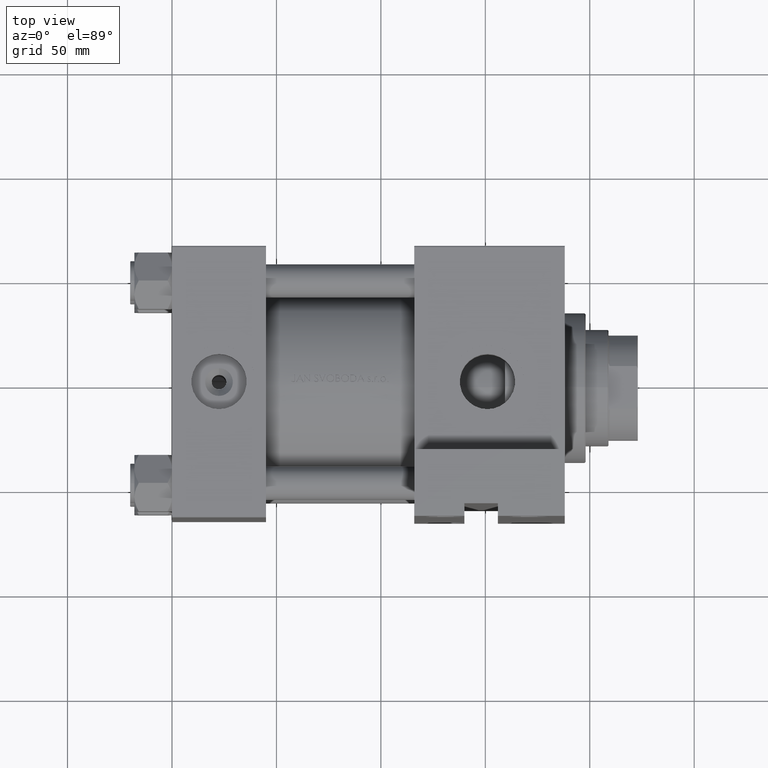
[diagram: clean part render]
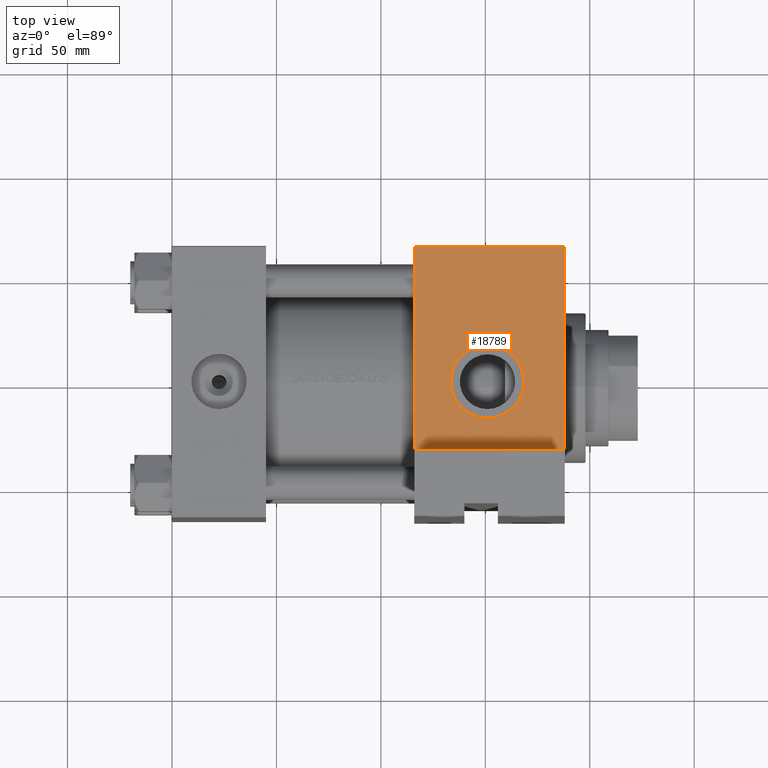
[diagram: same view with one face highlighted and labeled with its STEP entity id]
A machine part, top view. The second image highlights one B-rep face of the part: STEP entity #18789.
In plain terms, the highlighted planar face has unit normal (0, 0, -1).
Its self-contained STEP definition (entity closure, byte-faithful):
#262 = CARTESIAN_POINT ( 'NONE',  ( 151.0000000000000000, -64.99999999999998579, -17.49999999999999289 ) ) ;
#1447 = FACE_OUTER_BOUND ( 'NONE', #30011, .T. ) ;
#2943 = DIRECTION ( 'NONE',  ( 0.000000000000000000, 0.000000000000000000, -1.000000000000000000 ) ) ;
#5067 = ORIENTED_EDGE ( 'NONE', *, *, #27777, .T. ) ;
#5110 = VERTEX_POINT ( 'NONE', #7631 ) ;
#5581 = EDGE_CURVE ( 'NONE', #33712, #11941, #27488, .T. ) ;
#5741 = LINE ( 'NONE', #44387, #25142 ) ;
#5759 = AXIS2_PLACEMENT_3D ( 'NONE', #15567, #7999, #23386 ) ;
#6891 = CARTESIAN_POINT ( 'NONE',  ( 115.9999999999999858, -64.99999999999998579, -33.00000000000000000 ) ) ;
#7606 = LINE ( 'NONE', #11648, #42882 ) ;
#7631 = CARTESIAN_POINT ( 'NONE',  ( 151.0000000000000000, -64.99999999999998579, 17.49999999999999289 ) ) ;
#7999 = DIRECTION ( 'NONE',  ( 0.000000000000000000, -1.000000000000000000, -8.673617379884036705E-17 ) ) ;
#8324 = CARTESIAN_POINT ( 'NONE',  ( 188.0000000000000000, -64.99999999999998579, 65.00000000000000000 ) ) ;
#8548 = DIRECTION ( 'NONE',  ( -0.000000000000000000, 1.000000000000000000, 0.000000000000000000 ) ) ;
#10189 = ORIENTED_EDGE ( 'NONE', *, *, #23233, .F. ) ;
#10213 = CARTESIAN_POINT ( 'NONE',  ( 188.0000000000000000, -64.99999999999998579, 64.50000000000002842 ) ) ;
#11648 = CARTESIAN_POINT ( 'NONE',  ( 188.0000000000000000, -64.99999999999998579, 64.50000000000002842 ) ) ;
#11941 = VERTEX_POINT ( 'NONE', #15679 ) ;
#12740 = VECTOR ( 'NONE', #18605, 1000.000000000000000 ) ;
#13014 = AXIS2_PLACEMENT_3D ( 'NONE', #41950, #27023, #26781 ) ;
#15567 = CARTESIAN_POINT ( 'NONE',  ( 151.0000000000000000, -64.99999999999998579, 0.000000000000000000 ) ) ;
#15679 = CARTESIAN_POINT ( 'NONE',  ( 188.0000000000000000, -64.99999999999998579, -33.00000000000000000 ) ) ;
#16849 = PLANE ( 'NONE',  #34236 ) ;
#18605 = DIRECTION ( 'NONE',  ( 1.000000000000000000, 0.000000000000000000, 0.000000000000000000 ) ) ;
#18789 = ADVANCED_FACE ( 'NONE', ( #36044, #1447 ), #16849, .F. ) ;
#19462 = DIRECTION ( 'NONE',  ( -1.000000000000000000, 0.000000000000000000, 0.000000000000000000 ) ) ;
#19966 = VECTOR ( 'NONE', #47692, 1000.000000000000000 ) ;
#20897 = VERTEX_POINT ( 'NONE', #262 ) ;
#23233 = EDGE_CURVE ( 'NONE', #20897, #5110, #49347, .T. ) ;
#23386 = DIRECTION ( 'NONE',  ( 0.000000000000000000, 0.000000000000000000, -1.000000000000000000 ) ) ;
#24672 = CARTESIAN_POINT ( 'NONE',  ( 188.0000000000000000, -64.99999999999998579, 65.00000000000000000 ) ) ;
#25142 = VECTOR ( 'NONE', #2943, 1000.000000000000000 ) ;
#26781 = DIRECTION ( 'NONE',  ( 0.000000000000000000, 0.000000000000000000, -1.000000000000000000 ) ) ;
#27023 = DIRECTION ( 'NONE',  ( 0.000000000000000000, -1.000000000000000000, -8.673617379884036705E-17 ) ) ;
#27488 = LINE ( 'NONE', #8324, #19966 ) ;
#27777 = EDGE_CURVE ( 'NONE', #29111, #30564, #5741, .T. ) ;
#29111 = VERTEX_POINT ( 'NONE', #43361 ) ;
#29192 = ORIENTED_EDGE ( 'NONE', *, *, #32940, .T. ) ;
#30011 = EDGE_LOOP ( 'NONE', ( #46872, #48145, #5067, #29192 ) ) ;
#30564 = VERTEX_POINT ( 'NONE', #6891 ) ;
#32373 = CIRCLE ( 'NONE', #13014, 17.49999999999999289 ) ;
#32940 = EDGE_CURVE ( 'NONE', #30564, #11941, #38808, .T. ) ;
#33712 = VERTEX_POINT ( 'NONE', #10213 ) ;
#34236 = AXIS2_PLACEMENT_3D ( 'NONE', #24672, #8548, #47928 ) ;
#36044 = FACE_BOUND ( 'NONE', #40646, .T. ) ;
#38056 = CARTESIAN_POINT ( 'NONE',  ( 115.9999999999999858, -64.99999999999998579, -33.00000000000000000 ) ) ;
#38808 = LINE ( 'NONE', #38056, #12740 ) ;
#40646 = EDGE_LOOP ( 'NONE', ( #10189, #49409 ) ) ;
#41950 = CARTESIAN_POINT ( 'NONE',  ( 151.0000000000000000, -64.99999999999998579, 0.000000000000000000 ) ) ;
#42882 = VECTOR ( 'NONE', #19462, 1000.000000000000000 ) ;
#43361 = CARTESIAN_POINT ( 'NONE',  ( 115.9999999999999858, -64.99999999999998579, 64.50000000000002842 ) ) ;
#44387 = CARTESIAN_POINT ( 'NONE',  ( 115.9999999999999858, -64.99999999999998579, 65.00000000000000000 ) ) ;
#44876 = EDGE_CURVE ( 'NONE', #5110, #20897, #32373, .T. ) ;
#44896 = EDGE_CURVE ( 'NONE', #33712, #29111, #7606, .T. ) ;
#46872 = ORIENTED_EDGE ( 'NONE', *, *, #5581, .F. ) ;
#47692 = DIRECTION ( 'NONE',  ( 0.000000000000000000, 0.000000000000000000, -1.000000000000000000 ) ) ;
#47928 = DIRECTION ( 'NONE',  ( 0.000000000000000000, -0.000000000000000000, 1.000000000000000000 ) ) ;
#48145 = ORIENTED_EDGE ( 'NONE', *, *, #44896, .T. ) ;
#49347 = CIRCLE ( 'NONE', #5759, 17.49999999999999289 ) ;
#49409 = ORIENTED_EDGE ( 'NONE', *, *, #44876, .F. ) ;